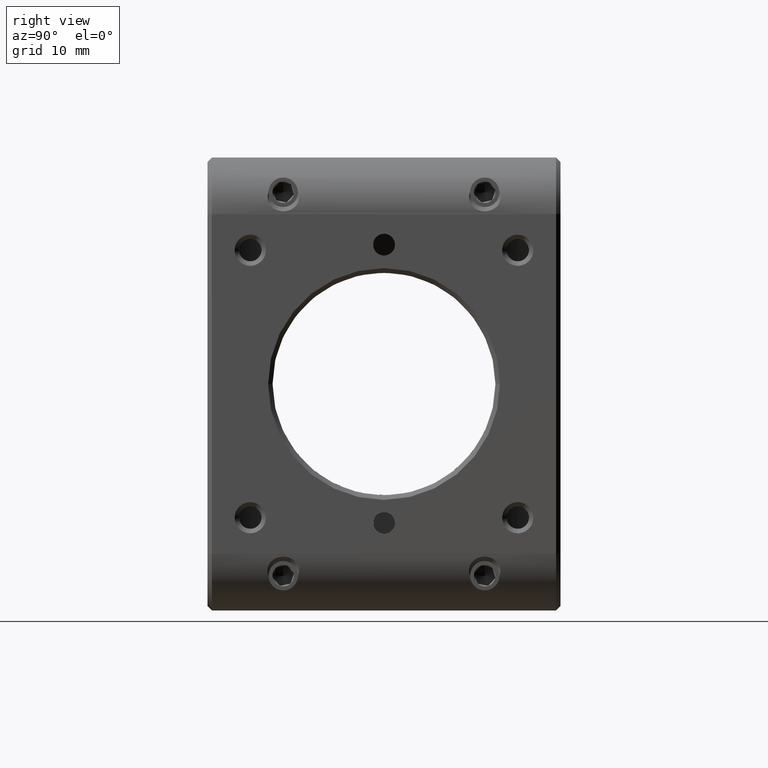
[diagram: clean part render]
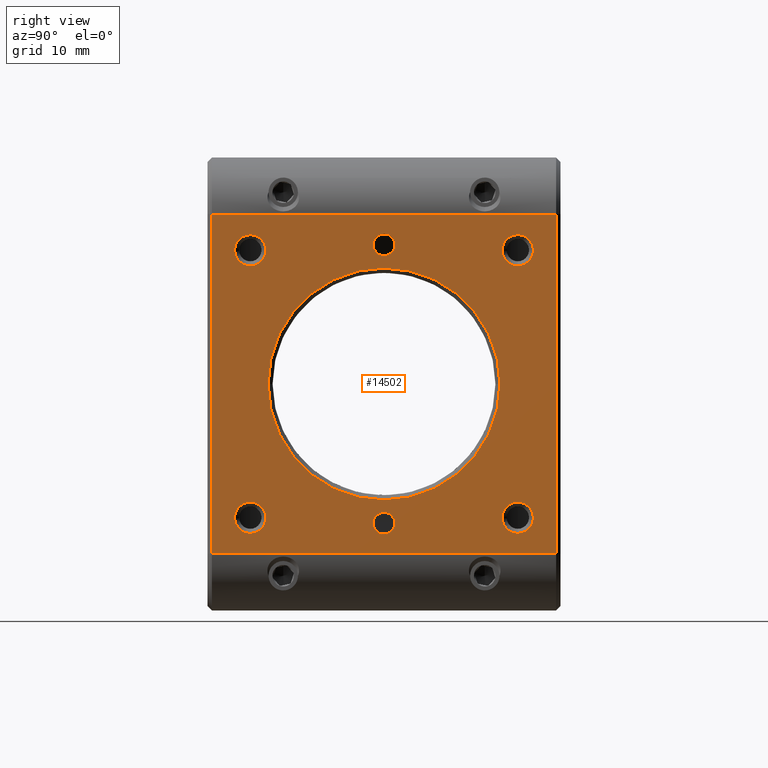
[diagram: same view with one face highlighted and labeled with its STEP entity id]
A machine part, right view. The second image highlights one B-rep face of the part: STEP entity #14502.
In plain terms, the highlighted planar face has unit normal (-1, -0, 0).
Its self-contained STEP definition (entity closure, byte-faithful):
#43 = LINE ( 'NONE', #3076, #14695 ) ;
#280 = EDGE_LOOP ( 'NONE', ( #11821, #17153 ) ) ;
#615 = EDGE_CURVE ( 'NONE', #7429, #827, #13050, .T. ) ;
#761 = DIRECTION ( 'NONE',  ( 3.965082230804130614E-15, 0.000000000000000000, -1.000000000000000000 ) ) ;
#827 = VERTEX_POINT ( 'NONE', #7582 ) ;
#867 = CIRCLE ( 'NONE', #15356, 1.749999999999999778 ) ;
#987 = ORIENTED_EDGE ( 'NONE', *, *, #13600, .F. ) ;
#1089 = CIRCLE ( 'NONE', #16701, 1.749999999999999778 ) ;
#1130 = DIRECTION ( 'NONE',  ( 3.965082230804130614E-15, 0.000000000000000000, -1.000000000000000000 ) ) ;
#1149 = DIRECTION ( 'NONE',  ( 3.965082230804130614E-15, 0.000000000000000000, -1.000000000000000000 ) ) ;
#1160 = ORIENTED_EDGE ( 'NONE', *, *, #5577, .T. ) ;
#1173 = DIRECTION ( 'NONE',  ( 1.000000000000000000, -0.000000000000000000, 3.491481338843133355E-15 ) ) ;
#1253 = CARTESIAN_POINT ( 'NONE',  ( 25.40000000000001279, 19.29999999999997584, 19.04999999999999716 ) ) ;
#1396 = DIRECTION ( 'NONE',  ( 2.668805347656630130E-16, -1.000000000000000000, 0.000000000000000000 ) ) ;
#1433 = CARTESIAN_POINT ( 'NONE',  ( 25.40000000000001279, 19.79999999999999005, 25.39999999999999858 ) ) ;
#1736 = ORIENTED_EDGE ( 'NONE', *, *, #3129, .F. ) ;
#1810 = DIRECTION ( 'NONE',  ( -2.843808977011157632E-15, 0.000000000000000000, -1.000000000000000000 ) ) ;
#2112 = VERTEX_POINT ( 'NONE', #10440 ) ;
#2559 = DIRECTION ( 'NONE',  ( 3.965082230804130614E-15, 0.000000000000000000, -1.000000000000000000 ) ) ;
#2561 = LINE ( 'NONE', #14524, #16000 ) ;
#2687 = CARTESIAN_POINT ( 'NONE',  ( 25.39999999999994529, 14.99999999999999822, 15.00000000000008704 ) ) ;
#2803 = AXIS2_PLACEMENT_3D ( 'NONE', #7400, #15315, #7237 ) ;
#2841 = VERTEX_POINT ( 'NONE', #3806 ) ;
#2852 = DIRECTION ( 'NONE',  ( 2.843808977011157632E-15, 0.000000000000000000, 1.000000000000000000 ) ) ;
#3076 = CARTESIAN_POINT ( 'NONE',  ( 25.40000000000001990, -19.30000000000001847, 25.39999999999999858 ) ) ;
#3129 = EDGE_CURVE ( 'NONE', #12795, #13462, #3684, .T. ) ;
#3130 = CIRCLE ( 'NONE', #2803, 1.220000000000000639 ) ;
#3167 = CARTESIAN_POINT ( 'NONE',  ( 25.39999999999995239, 14.99999999999999822, 13.25000000000008882 ) ) ;
#3241 = ORIENTED_EDGE ( 'NONE', *, *, #16577, .F. ) ;
#3508 = AXIS2_PLACEMENT_3D ( 'NONE', #13238, #5072, #17045 ) ;
#3684 = CIRCLE ( 'NONE', #3508, 1.749999999999999778 ) ;
#3806 = CARTESIAN_POINT ( 'NONE',  ( 25.39999999999995239, -15.00000000000000178, 13.25000000000008882 ) ) ;
#3907 = VERTEX_POINT ( 'NONE', #9468 ) ;
#4169 = ORIENTED_EDGE ( 'NONE', *, *, #16713, .T. ) ;
#4368 = VECTOR ( 'NONE', #7327, 1000.000000000000000 ) ;
#4474 = AXIS2_PLACEMENT_3D ( 'NONE', #9665, #12357, #15179 ) ;
#4513 = CARTESIAN_POINT ( 'NONE',  ( 25.40000000000005898, -14.99999999999999822, -16.74999999999991118 ) ) ;
#4710 = CIRCLE ( 'NONE', #8236, 1.749999999999999778 ) ;
#4720 = EDGE_CURVE ( 'NONE', #6707, #8763, #43, .T. ) ;
#4912 = EDGE_LOOP ( 'NONE', ( #6181, #4169 ) ) ;
#4946 = CIRCLE ( 'NONE', #4474, 12.99999999999998046 ) ;
#4998 = VERTEX_POINT ( 'NONE', #1253 ) ;
#5049 = EDGE_CURVE ( 'NONE', #13462, #12795, #867, .T. ) ;
#5067 = AXIS2_PLACEMENT_3D ( 'NONE', #17270, #13111, #2559 ) ;
#5072 = DIRECTION ( 'NONE',  ( 1.000000000000000000, -0.000000000000000000, 3.491481338843133355E-15 ) ) ;
#5102 = DIRECTION ( 'NONE',  ( 3.965082230804130614E-15, 0.000000000000000000, -1.000000000000000000 ) ) ;
#5161 = CARTESIAN_POINT ( 'NONE',  ( 25.40000000000004476, 14.99999999999999822, -13.24999999999991118 ) ) ;
#5457 = DIRECTION ( 'NONE',  ( 1.000000000000000000, 0.000000000000000000, -3.491481338843133355E-15 ) ) ;
#5577 = EDGE_CURVE ( 'NONE', #8763, #6681, #13120, .T. ) ;
#5741 = ORIENTED_EDGE ( 'NONE', *, *, #13496, .F. ) ;
#5773 = EDGE_CURVE ( 'NONE', #7895, #16673, #4710, .T. ) ;
#5933 = EDGE_CURVE ( 'NONE', #2841, #13548, #17275, .T. ) ;
#5965 = CARTESIAN_POINT ( 'NONE',  ( 25.40000000000005187, 14.99999999999999822, -14.99999999999991118 ) ) ;
#5981 = DIRECTION ( 'NONE',  ( 2.843808977011157632E-15, 0.000000000000000000, 1.000000000000000000 ) ) ;
#5997 = CARTESIAN_POINT ( 'NONE',  ( 25.39999999999994174, 14.99999999999999822, 16.75000000000008882 ) ) ;
#6178 = CIRCLE ( 'NONE', #15871, 1.749999999999999778 ) ;
#6181 = ORIENTED_EDGE ( 'NONE', *, *, #11702, .T. ) ;
#6246 = CARTESIAN_POINT ( 'NONE',  ( 25.40000000000005898, 1.494069094959771549E-16, 16.83999999999990749 ) ) ;
#6284 = PLANE ( 'NONE',  #6295 ) ;
#6295 = AXIS2_PLACEMENT_3D ( 'NONE', #1433, #11900, #7850 ) ;
#6362 = EDGE_CURVE ( 'NONE', #827, #7429, #3130, .T. ) ;
#6478 = ORIENTED_EDGE ( 'NONE', *, *, #13273, .T. ) ;
#6593 = ORIENTED_EDGE ( 'NONE', *, *, #13650, .F. ) ;
#6595 = FACE_BOUND ( 'NONE', #8499, .T. ) ;
#6681 = VERTEX_POINT ( 'NONE', #15948 ) ;
#6698 = CARTESIAN_POINT ( 'NONE',  ( 25.39999999999994174, 3.825796600536331329E-15, -15.62000000000008981 ) ) ;
#6707 = VERTEX_POINT ( 'NONE', #9236 ) ;
#7057 = LINE ( 'NONE', #12187, #4368 ) ;
#7079 = CARTESIAN_POINT ( 'NONE',  ( 25.40000000000005542, 0.000000000000000000, 15.61999999999990685 ) ) ;
#7209 = CARTESIAN_POINT ( 'NONE',  ( 25.39999999999994174, 3.825796600536331329E-15, -15.62000000000008981 ) ) ;
#7237 = DIRECTION ( 'NONE',  ( -2.843808977011157632E-15, 0.000000000000000000, -1.000000000000000000 ) ) ;
#7327 = DIRECTION ( 'NONE',  ( 1.752245935330108181E-16, -1.000000000000000000, -0.000000000000000000 ) ) ;
#7400 = CARTESIAN_POINT ( 'NONE',  ( 25.40000000000005542, 0.000000000000000000, 15.61999999999990685 ) ) ;
#7429 = VERTEX_POINT ( 'NONE', #6246 ) ;
#7473 = EDGE_LOOP ( 'NONE', ( #1736, #14147 ) ) ;
#7582 = CARTESIAN_POINT ( 'NONE',  ( 25.40000000000005187, 0.000000000000000000, 14.39999999999990621 ) ) ;
#7850 = DIRECTION ( 'NONE',  ( 1.752245935330108181E-16, -1.000000000000000000, 0.000000000000000000 ) ) ;
#7861 = VERTEX_POINT ( 'NONE', #3167 ) ;
#7895 = VERTEX_POINT ( 'NONE', #15543 ) ;
#7961 = DIRECTION ( 'NONE',  ( 3.965082230804130614E-15, 0.000000000000000000, -1.000000000000000000 ) ) ;
#8236 = AXIS2_PLACEMENT_3D ( 'NONE', #9229, #9112, #1149 ) ;
#8499 = EDGE_LOOP ( 'NONE', ( #15646, #3241 ) ) ;
#8763 = VERTEX_POINT ( 'NONE', #16988 ) ;
#9112 = DIRECTION ( 'NONE',  ( 1.000000000000000000, -0.000000000000000000, 3.491481338843133355E-15 ) ) ;
#9229 = CARTESIAN_POINT ( 'NONE',  ( 25.40000000000005187, 14.99999999999999822, -14.99999999999991118 ) ) ;
#9236 = CARTESIAN_POINT ( 'NONE',  ( 25.40000000000001990, -19.30000000000001137, 19.04999999999999716 ) ) ;
#9326 = FACE_BOUND ( 'NONE', #13369, .T. ) ;
#9415 = AXIS2_PLACEMENT_3D ( 'NONE', #7079, #16557, #1810 ) ;
#9468 = CARTESIAN_POINT ( 'NONE',  ( 25.40000000000001990, -12.99999999999999645, 1.592040838891557123E-15 ) ) ;
#9533 = FACE_BOUND ( 'NONE', #280, .T. ) ;
#9665 = CARTESIAN_POINT ( 'NONE',  ( 25.40000000000001634, -1.289653008402959195E-14, 0.000000000000000000 ) ) ;
#9834 = EDGE_LOOP ( 'NONE', ( #987, #5741 ) ) ;
#9985 = EDGE_CURVE ( 'NONE', #6681, #4998, #2561, .T. ) ;
#10053 = ORIENTED_EDGE ( 'NONE', *, *, #4720, .T. ) ;
#10199 = EDGE_CURVE ( 'NONE', #13206, #10498, #11367, .T. ) ;
#10411 = DIRECTION ( 'NONE',  ( 1.000000000000000000, -0.000000000000000000, 3.491481338843133355E-15 ) ) ;
#10440 = CARTESIAN_POINT ( 'NONE',  ( 25.40000000000001279, 12.99999999999996803, 0.000000000000000000 ) ) ;
#10480 = CARTESIAN_POINT ( 'NONE',  ( 25.40000000000004476, -14.99999999999999822, -13.24999999999991118 ) ) ;
#10498 = VERTEX_POINT ( 'NONE', #12041 ) ;
#10540 = CARTESIAN_POINT ( 'NONE',  ( 25.39999999999994174, -15.00000000000000178, 16.75000000000008527 ) ) ;
#10639 = AXIS2_PLACEMENT_3D ( 'NONE', #7209, #12637, #5981 ) ;
#10779 = DIRECTION ( 'NONE',  ( 1.000000000000000000, -0.000000000000000000, 3.491481338843133355E-15 ) ) ;
#10813 = DIRECTION ( 'NONE',  ( -1.000000000000000000, -1.752245935330108181E-16, 0.000000000000000000 ) ) ;
#11079 = ORIENTED_EDGE ( 'NONE', *, *, #15533, .F. ) ;
#11080 = ORIENTED_EDGE ( 'NONE', *, *, #9985, .T. ) ;
#11367 = CIRCLE ( 'NONE', #10639, 1.220000000000000639 ) ;
#11593 = AXIS2_PLACEMENT_3D ( 'NONE', #6698, #5457, #2852 ) ;
#11660 = ORIENTED_EDGE ( 'NONE', *, *, #5933, .F. ) ;
#11702 = EDGE_CURVE ( 'NONE', #2112, #3907, #4946, .T. ) ;
#11761 = VERTEX_POINT ( 'NONE', #5997 ) ;
#11809 = CARTESIAN_POINT ( 'NONE',  ( 25.39999999999994529, -15.00000000000000178, 15.00000000000008704 ) ) ;
#11821 = ORIENTED_EDGE ( 'NONE', *, *, #6362, .F. ) ;
#11900 = DIRECTION ( 'NONE',  ( -1.000000000000000000, -1.752245935330108181E-16, 0.000000000000000000 ) ) ;
#11941 = CARTESIAN_POINT ( 'NONE',  ( 25.40000000000005187, -14.99999999999999822, -14.99999999999991118 ) ) ;
#12041 = CARTESIAN_POINT ( 'NONE',  ( 25.39999999999994529, 3.975203510032308336E-15, -14.40000000000008917 ) ) ;
#12187 = CARTESIAN_POINT ( 'NONE',  ( 25.40000000000001990, -19.80000000000001137, 19.04999999999999716 ) ) ;
#12357 = DIRECTION ( 'NONE',  ( -1.000000000000000000, -1.752245935330108181E-16, 0.000000000000000000 ) ) ;
#12637 = DIRECTION ( 'NONE',  ( 1.000000000000000000, 0.000000000000000000, -3.491481338843133355E-15 ) ) ;
#12733 = CIRCLE ( 'NONE', #11593, 1.220000000000000639 ) ;
#12795 = VERTEX_POINT ( 'NONE', #4513 ) ;
#12889 = CARTESIAN_POINT ( 'NONE',  ( 25.39999999999994529, -15.00000000000000178, 15.00000000000008704 ) ) ;
#12915 = DIRECTION ( 'NONE',  ( 1.000000000000000000, -0.000000000000000000, 3.491481338843133355E-15 ) ) ;
#12950 = DIRECTION ( 'NONE',  ( 1.000000000000000000, -0.000000000000000000, 3.491481338843133355E-15 ) ) ;
#12973 = DIRECTION ( 'NONE',  ( -1.752245935330108181E-16, 1.000000000000000000, 0.000000000000000000 ) ) ;
#13050 = CIRCLE ( 'NONE', #9415, 1.220000000000000639 ) ;
#13111 = DIRECTION ( 'NONE',  ( 1.000000000000000000, -0.000000000000000000, 3.491481338843133355E-15 ) ) ;
#13120 = LINE ( 'NONE', #15613, #17109 ) ;
#13206 = VERTEX_POINT ( 'NONE', #14342 ) ;
#13238 = CARTESIAN_POINT ( 'NONE',  ( 25.40000000000005187, -14.99999999999999822, -14.99999999999991118 ) ) ;
#13247 = DIRECTION ( 'NONE',  ( 0.000000000000000000, 0.000000000000000000, 1.000000000000000000 ) ) ;
#13273 = EDGE_CURVE ( 'NONE', #4998, #6707, #7057, .T. ) ;
#13337 = FACE_BOUND ( 'NONE', #4912, .T. ) ;
#13369 = EDGE_LOOP ( 'NONE', ( #15402, #6593 ) ) ;
#13462 = VERTEX_POINT ( 'NONE', #10480 ) ;
#13496 = EDGE_CURVE ( 'NONE', #11761, #7861, #13787, .T. ) ;
#13537 = FACE_BOUND ( 'NONE', #9834, .T. ) ;
#13548 = VERTEX_POINT ( 'NONE', #10540 ) ;
#13600 = EDGE_CURVE ( 'NONE', #7861, #11761, #6178, .T. ) ;
#13650 = EDGE_CURVE ( 'NONE', #10498, #13206, #12733, .T. ) ;
#13742 = FACE_BOUND ( 'NONE', #7473, .T. ) ;
#13787 = CIRCLE ( 'NONE', #5067, 1.749999999999999778 ) ;
#14147 = ORIENTED_EDGE ( 'NONE', *, *, #5049, .F. ) ;
#14338 = DIRECTION ( 'NONE',  ( 3.965082230804130614E-15, 0.000000000000000000, -1.000000000000000000 ) ) ;
#14342 = CARTESIAN_POINT ( 'NONE',  ( 25.39999999999994174, 3.825796600536331329E-15, -16.84000000000009223 ) ) ;
#14502 = ADVANCED_FACE ( 'NONE', ( #9326, #9533, #13337, #13537, #6595, #13742, #17316, #16470 ), #6284, .F. ) ;
#14524 = CARTESIAN_POINT ( 'NONE',  ( 25.40000000000001279, 19.29999999999999005, 25.39999999999999858 ) ) ;
#14695 = VECTOR ( 'NONE', #16065, 1000.000000000000000 ) ;
#14853 = CARTESIAN_POINT ( 'NONE',  ( 25.40000000000001634, -1.289653008402959195E-14, 0.000000000000000000 ) ) ;
#14881 = CIRCLE ( 'NONE', #16947, 12.99999999999998046 ) ;
#15179 = DIRECTION ( 'NONE',  ( 2.668805347656630130E-16, -1.000000000000000000, 0.000000000000000000 ) ) ;
#15315 = DIRECTION ( 'NONE',  ( 1.000000000000000000, 0.000000000000000000, -3.491481338843133355E-15 ) ) ;
#15337 = CIRCLE ( 'NONE', #17150, 1.749999999999999778 ) ;
#15356 = AXIS2_PLACEMENT_3D ( 'NONE', #11941, #10411, #1130 ) ;
#15402 = ORIENTED_EDGE ( 'NONE', *, *, #10199, .F. ) ;
#15533 = EDGE_CURVE ( 'NONE', #13548, #2841, #15337, .T. ) ;
#15543 = CARTESIAN_POINT ( 'NONE',  ( 25.40000000000005898, 14.99999999999999822, -16.74999999999991118 ) ) ;
#15613 = CARTESIAN_POINT ( 'NONE',  ( 25.40000000000001279, 19.79999999999999005, -19.04999999999999716 ) ) ;
#15646 = ORIENTED_EDGE ( 'NONE', *, *, #5773, .F. ) ;
#15820 = AXIS2_PLACEMENT_3D ( 'NONE', #11809, #1173, #5102 ) ;
#15871 = AXIS2_PLACEMENT_3D ( 'NONE', #2687, #10779, #7961 ) ;
#15948 = CARTESIAN_POINT ( 'NONE',  ( 25.40000000000001279, 19.29999999999997584, -19.04999999999999716 ) ) ;
#16000 = VECTOR ( 'NONE', #13247, 1000.000000000000000 ) ;
#16065 = DIRECTION ( 'NONE',  ( 0.000000000000000000, 0.000000000000000000, -1.000000000000000000 ) ) ;
#16467 = EDGE_LOOP ( 'NONE', ( #6478, #10053, #1160, #11080 ) ) ;
#16470 = FACE_OUTER_BOUND ( 'NONE', #16467, .T. ) ;
#16557 = DIRECTION ( 'NONE',  ( 1.000000000000000000, 0.000000000000000000, -3.491481338843133355E-15 ) ) ;
#16577 = EDGE_CURVE ( 'NONE', #16673, #7895, #1089, .T. ) ;
#16658 = EDGE_LOOP ( 'NONE', ( #11660, #11079 ) ) ;
#16673 = VERTEX_POINT ( 'NONE', #5161 ) ;
#16701 = AXIS2_PLACEMENT_3D ( 'NONE', #5965, #12915, #761 ) ;
#16713 = EDGE_CURVE ( 'NONE', #3907, #2112, #14881, .T. ) ;
#16947 = AXIS2_PLACEMENT_3D ( 'NONE', #14853, #10813, #1396 ) ;
#16988 = CARTESIAN_POINT ( 'NONE',  ( 25.40000000000001990, -19.30000000000001137, -19.04999999999999716 ) ) ;
#17045 = DIRECTION ( 'NONE',  ( 3.965082230804130614E-15, 0.000000000000000000, -1.000000000000000000 ) ) ;
#17109 = VECTOR ( 'NONE', #12973, 1000.000000000000000 ) ;
#17150 = AXIS2_PLACEMENT_3D ( 'NONE', #12889, #12950, #14338 ) ;
#17153 = ORIENTED_EDGE ( 'NONE', *, *, #615, .F. ) ;
#17270 = CARTESIAN_POINT ( 'NONE',  ( 25.39999999999994529, 14.99999999999999822, 15.00000000000008704 ) ) ;
#17275 = CIRCLE ( 'NONE', #15820, 1.749999999999999778 ) ;
#17316 = FACE_BOUND ( 'NONE', #16658, .T. ) ;